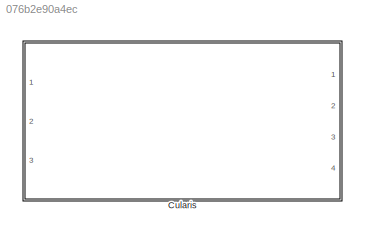
MODEL slx_076b2e90a4ec
KIND library
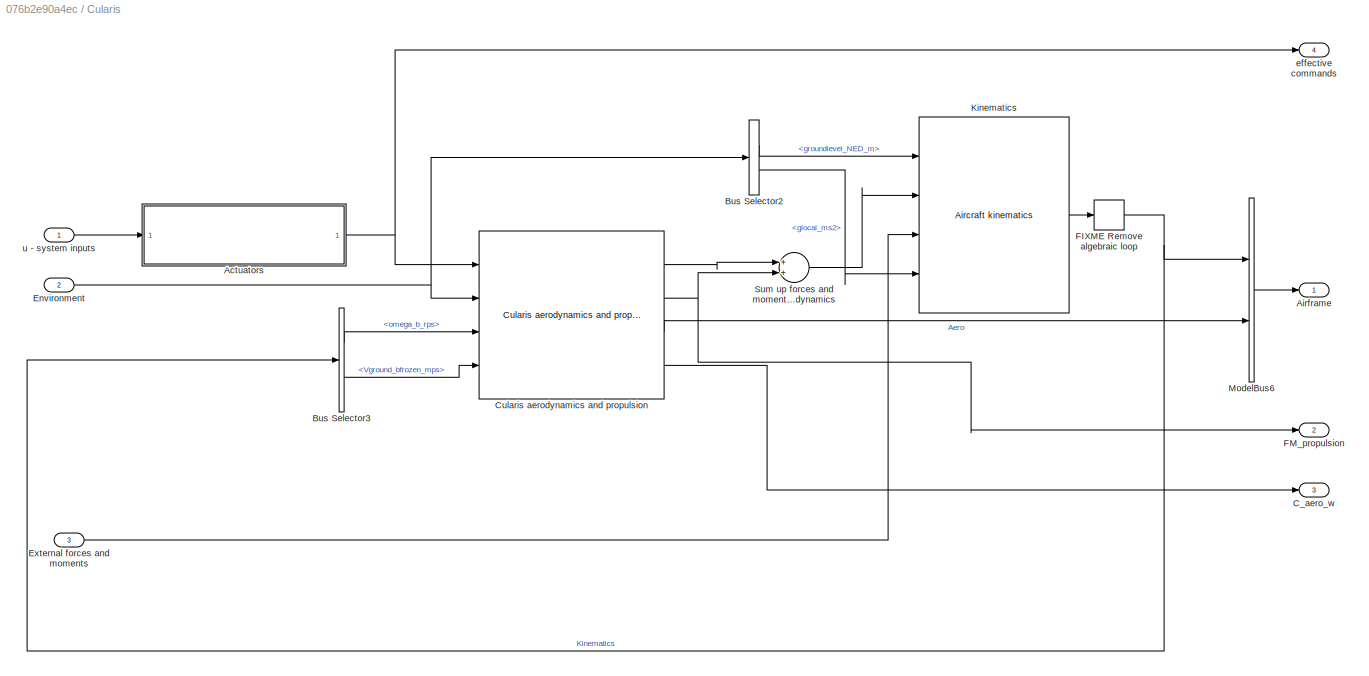
BLOCK [SubSystem] Cularis
  Ports = [3, 4]
  RequestExecContextInheritance = off
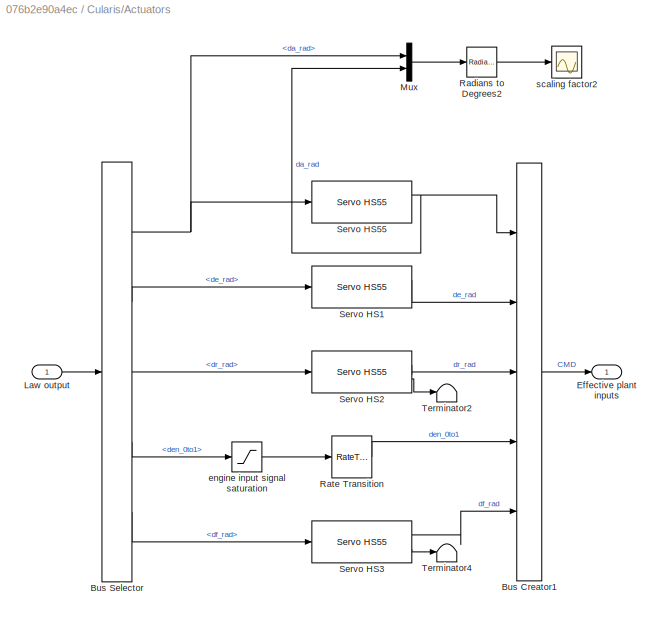
BLOCK [SubSystem] Cularis/Actuators
  Ports = [1, 1]
  RequestExecContextInheritance = off
  TreatAsAtomicUnit = on
BLOCK [BusCreator] Cularis/Actuators/Bus Creator1
  DisplayOption = bar
  Inputs = 5
  NonVirtualBus = on
  OutDataTypeStr = Bus: CMD
  Ports = [5, 1]
BLOCK [BusSelector] Cularis/Actuators/Bus Selector
  OutputSignals = da_rad,de_rad,dr_rad,den_0to1,df_rad
  Ports = [1, 5]
BLOCK [Outport] Cularis/Actuators/Effective plant inputs
  IconDisplay = Port number
  OutDataTypeStr = Bus: CMD
BLOCK [Inport] Cularis/Actuators/Law output
  IconDisplay = Port number
  OutDataTypeStr = Bus: CMD
BLOCK [Mux] Cularis/Actuators/Mux
  DisplayOption = bar
  Inputs = 2
  Ports = [2, 1]
BLOCK [Reference] Cularis/Actuators/Radians to Degrees2  REF=simulink_extras/Transformations/Radians
to Degrees
  Ports = [1, 1]
  SourceBlock = simulink_extras/Transformations/Radians\nto Degrees
  SourceType = RadiansToDegrees
BLOCK [RateTransition] Cularis/Actuators/Rate Transition
  Integrity = off
BLOCK [Reference] Cularis/Actuators/Servo HS1  REF=uavsimBlockset_ServoHS55/Servo HS55
  Ports = [1, 2]
  SourceBlock = uavsimBlockset_ServoHS55/Servo HS55
  deflectionLimits_rad = [deg2rad(-45) deg2rad(45)]
  mask_initialPosition = uavsim.aircraftLibraryData.zagi.u0.de
  outputLimit_enabled = on
  rateLimit_enabled = on
BLOCK [Reference] Cularis/Actuators/Servo HS2  REF=uavsimBlockset_ServoHS55/Servo HS55
  Ports = [1, 2]
  SourceBlock = uavsimBlockset_ServoHS55/Servo HS55
  deflectionLimits_rad = [deg2rad(-45) deg2rad(45)]
  mask_initialPosition = uavsim.aircraftLibraryData.zagi.u0.dr
  outputLimit_enabled = on
  rateLimit_enabled = on
BLOCK [Reference] Cularis/Actuators/Servo HS3  REF=uavsimBlockset_ServoHS55/Servo HS55
  Ports = [1, 2]
  SourceBlock = uavsimBlockset_ServoHS55/Servo HS55
  deflectionLimits_rad = [deg2rad(-10) deg2rad(90)]
  mask_initialPosition = uavsim.aircraftLibraryData.zagi.u0.df
  outputLimit_enabled = on
  rateLimit_enabled = on
BLOCK [Reference] Cularis/Actuators/Servo HS55  REF=uavsimBlockset_ServoHS55/Servo HS55
  Ports = [1, 2]
  SourceBlock = uavsimBlockset_ServoHS55/Servo HS55
  deflectionLimits_rad = [deg2rad(-45) deg2rad(45)]
  mask_initialPosition = uavsim.aircraftLibraryData.zagi.u0.da
  outputLimit_enabled = on
  rateLimit_enabled = on
BLOCK [Terminator] Cularis/Actuators/Terminator2
BLOCK [Terminator] Cularis/Actuators/Terminator4
BLOCK [Saturate] Cularis/Actuators/engine input signal saturation
  InputPortMap = u0
  LowerLimit = 0
  Ports = [1, 1]
  UpperLimit = 1
BLOCK [Scope] Cularis/Actuators/scaling factor2
  DataFormat = StructureWithTime
  Floating = off
  MaxDataPoints = 500000
  NumInputPorts = 1
  Ports = [1]
  SampleTime = 0
  SaveName = ScopeData40
  ShowLegends = off
  TimeRange = 14
  YMax = 60
  YMin = -30
  ZoomMode = xonly
BLOCK [Outport] Cularis/Airframe
  IconDisplay = Port number
  OutDataTypeStr = Bus: Airframe
BLOCK [BusSelector] Cularis/Bus Selector2
  OutputSignals = groundlevel_NED_m,glocal_ms2
  Ports = [1, 2]
BLOCK [BusSelector] Cularis/Bus Selector3
  OutputSignals = RotationalVelocity.omega_b_rps,Velocity.Vground_bfrozen_mps
  Ports = [1, 2]
BLOCK [Outport] Cularis/C_aero_w
  IconDisplay = Port number
  Port = 3
BLOCK [Reference] Cularis/Cularis aerodynamics and propulsion  REF=uavsimBlockset_Cularis_Aerandpropulsion/Cularis aerodynamics and propulsion
  FunctionWithSeparateData = off
  GeneratePreprocessorConditionals = off
  Ports = [4, 4]
  ShowPortLabels = FromPortIcon
  SourceBlock = uavsimBlockset_Cularis_Aerandpropulsion/Cularis aerodynamics and propulsion
  SystemSampleTime = -1
BLOCK [Inport] Cularis/Environment
  IconDisplay = Port number
  OutDataTypeStr = Bus: Environment
  Port = 2
BLOCK [Inport] Cularis/External forces and moments
  IconDisplay = Port number
  Port = 3
BLOCK [Memory] Cularis/FIXME Remove algebraic loop
  X0 = 1e-6
BLOCK [Outport] Cularis/FM_propulsion
  IconDisplay = Port number
  Port = 2
BLOCK [Reference] Cularis/Kinematics  REF=uavsimblockset_SixDOFKinematics/Aircraft kinematics
  Ports = [4, 1]
  SourceBlock = uavsimblockset_SixDOFKinematics/Aircraft kinematics
  mask_P0_ECEF_rrm = mask_zagi_p0_ECEF_lla
  mask_inertia = uavsim.zagi.inertiaTensor
  mask_mass = uavsim.zagi.mass
  mask_omega0 = mask_zagi_pqr0
  mask_originNED_ECEF_rrm = mask_zagi_originNED_ECEF_rrm
  mask_phithetapsi0 = mask_zagi_phithetapsi0
  mask_uvw0 = mask_zagi_uvw0
BLOCK [BusCreator] Cularis/ModelBus6
  DisplayOption = bar
  Inputs = 2
  NonVirtualBus = on
  OutDataTypeStr = Bus: Airframe
  Ports = [2, 1]
BLOCK [Sum] Cularis/Sum up forces and moments of engine and aircraft aerodynamics
  InputSameDT = off
  OutDataTypeStr = Inherit: Inherit via internal rule
  Ports = [2, 1]
  SaturateOnIntegerOverflow = off
BLOCK [Outport] Cularis/effective commands
  IconDisplay = Port number
  OutDataTypeStr = Bus: CMD
  Port = 4
BLOCK [Inport] Cularis/u - system inputs
  IconDisplay = Port number
  OutDataTypeStr = Bus: CMD
LINE Cularis/Actuators/Bus Creator1:1 -> Cularis/Actuators/Effective plant inputs:1
NET Cularis/Actuators/Bus Selector:1 -> Cularis/Actuators/Mux:1, Cularis/Actuators/Servo HS55:1
LINE Cularis/Actuators/Bus Selector:2 -> Cularis/Actuators/Servo HS1:1
LINE Cularis/Actuators/Bus Selector:3 -> Cularis/Actuators/Servo HS2:1
LINE Cularis/Actuators/Bus Selector:4 -> Cularis/Actuators/engine input signal saturation:1
LINE Cularis/Actuators/Bus Selector:5 -> Cularis/Actuators/Servo HS3:1
LINE Cularis/Actuators/Law output:1 -> Cularis/Actuators/Bus Selector:1
LINE Cularis/Actuators/Mux:1 -> Cularis/Actuators/Radians to Degrees2:1
LINE Cularis/Actuators/Radians to Degrees2:1 -> Cularis/Actuators/scaling factor2:1
LINE Cularis/Actuators/Rate Transition:1 -> Cularis/Actuators/Bus Creator1:4
LINE Cularis/Actuators/Servo HS1:1 -> Cularis/Actuators/Bus Creator1:2
LINE Cularis/Actuators/Servo HS2:1 -> Cularis/Actuators/Bus Creator1:3
LINE Cularis/Actuators/Servo HS2:2 -> Cularis/Actuators/Terminator2:1
LINE Cularis/Actuators/Servo HS3:1 -> Cularis/Actuators/Bus Creator1:5
LINE Cularis/Actuators/Servo HS3:2 -> Cularis/Actuators/Terminator4:1
NET Cularis/Actuators/Servo HS55:1 -> Cularis/Actuators/Bus Creator1:1, Cularis/Actuators/Mux:2
LINE Cularis/Actuators/engine input signal saturation:1 -> Cularis/Actuators/Rate Transition:1
NET Cularis/Actuators:1 -> Cularis/Cularis aerodynamics and propulsion:1, Cularis/effective commands:1
LINE Cularis/Bus Selector2:1 -> Cularis/Kinematics:1
LINE Cularis/Bus Selector2:2 -> Cularis/Kinematics:4
LINE Cularis/Bus Selector3:1 -> Cularis/Cularis aerodynamics and propulsion:3
LINE Cularis/Bus Selector3:2 -> Cularis/Cularis aerodynamics and propulsion:4
LINE Cularis/Cularis aerodynamics and propulsion:1 -> Cularis/Sum up forces and moments of engine and aircraft aerodynamics:1
NET Cularis/Cularis aerodynamics and propulsion:2 -> Cularis/FM_propulsion:1, Cularis/Sum up forces and moments of engine and aircraft aerodynamics:2
LINE Cularis/Cularis aerodynamics and propulsion:3 -> Cularis/ModelBus6:2
LINE Cularis/Cularis aerodynamics and propulsion:4 -> Cularis/C_aero_w:1
NET Cularis/Environment:1 -> Cularis/Bus Selector2:1, Cularis/Cularis aerodynamics and propulsion:2
LINE Cularis/External forces and moments:1 -> Cularis/Kinematics:3
NET Cularis/FIXME Remove algebraic loop:1 -> Cularis/Bus Selector3:1, Cularis/ModelBus6:1
LINE Cularis/Kinematics:1 -> Cularis/FIXME Remove algebraic loop:1
LINE Cularis/ModelBus6:1 -> Cularis/Airframe:1
LINE Cularis/Sum up forces and moments of engine and aircraft aerodynamics:1 -> Cularis/Kinematics:2
LINE Cularis/u - system inputs:1 -> Cularis/Actuators:1
note: NET lines group one-source signal fan-out (src -> all destinations, sorted); 1:1 wires keep LINE
